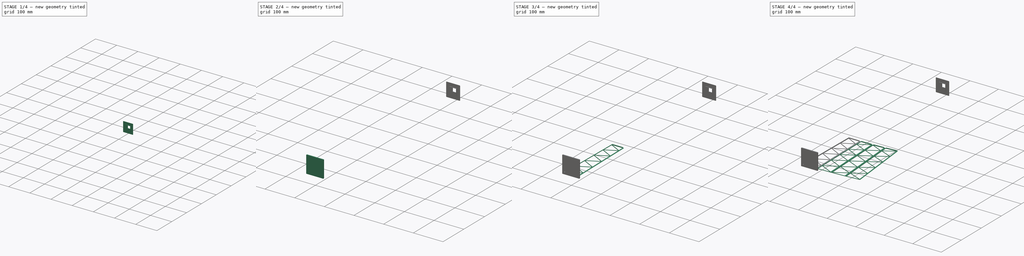
[diagram: build sequence overview — one tinted view per stage of 4, left to right]
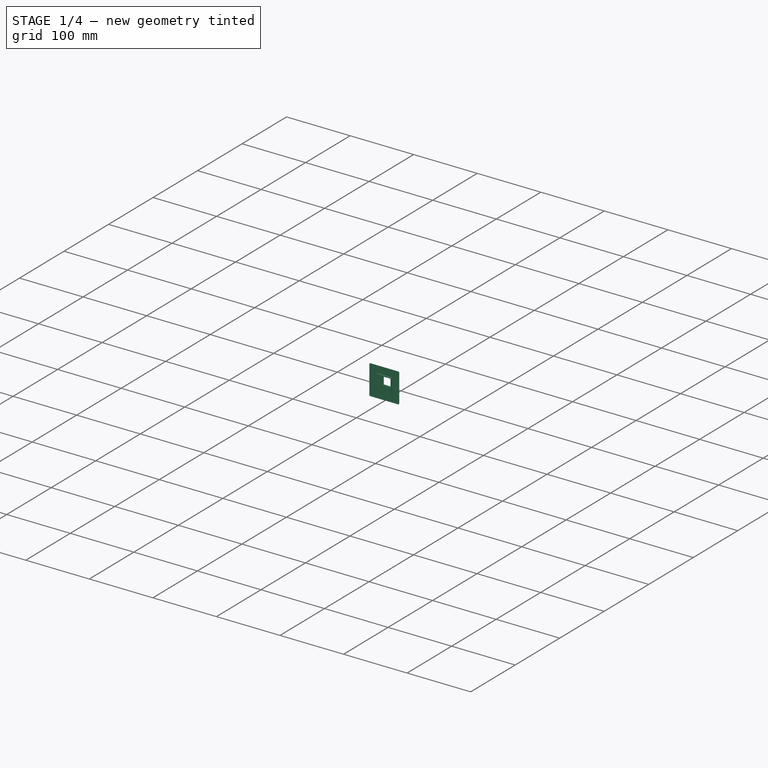
[diagram: stage 1 of 4 — iso view after this stage's code; geometry added in this stage tinted green]
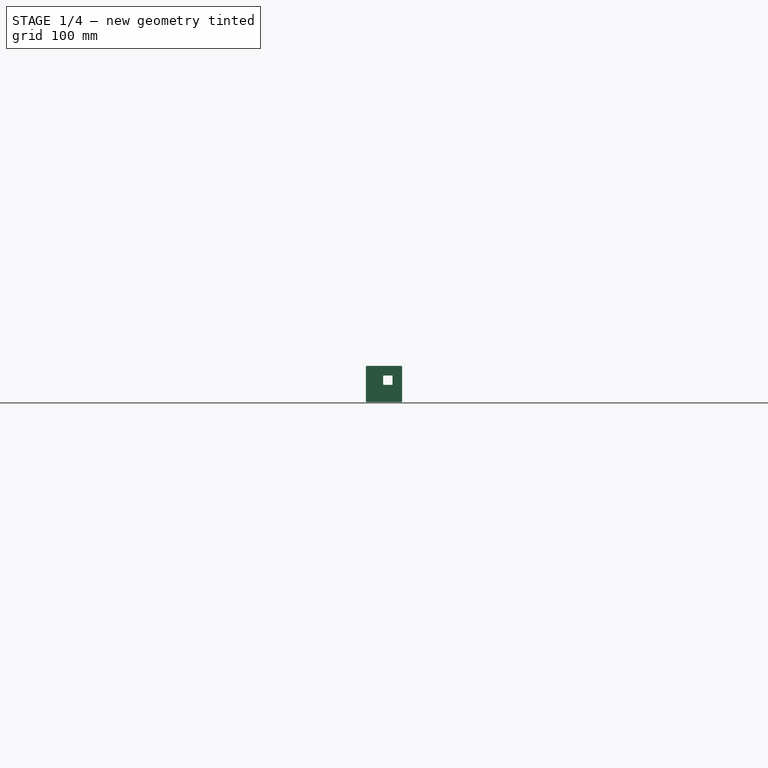
[diagram: stage 1 of 4 — front view after this stage's code; geometry added in this stage tinted green]
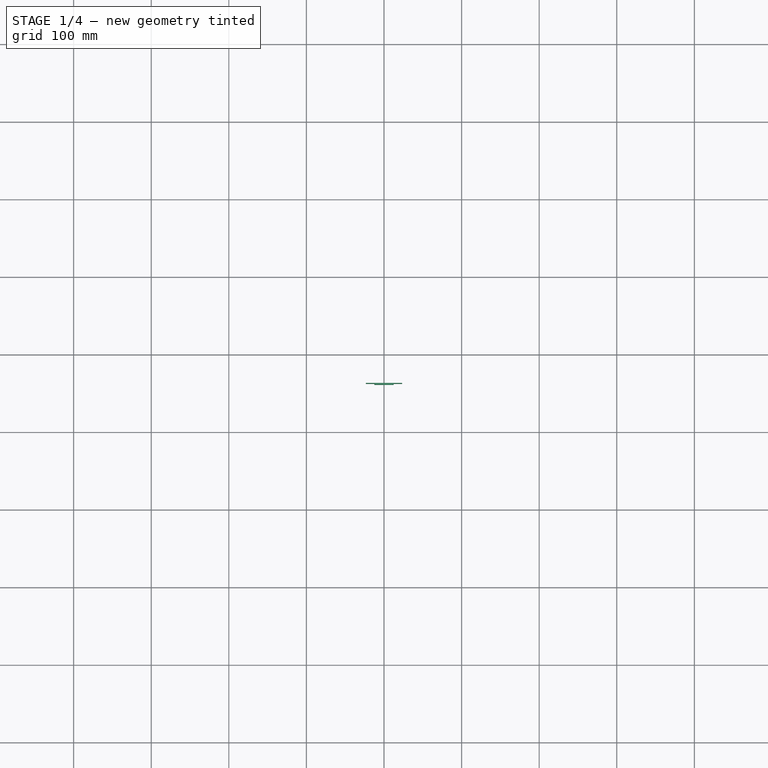
[diagram: stage 1 of 4 — top view after this stage's code; geometry added in this stage tinted green]
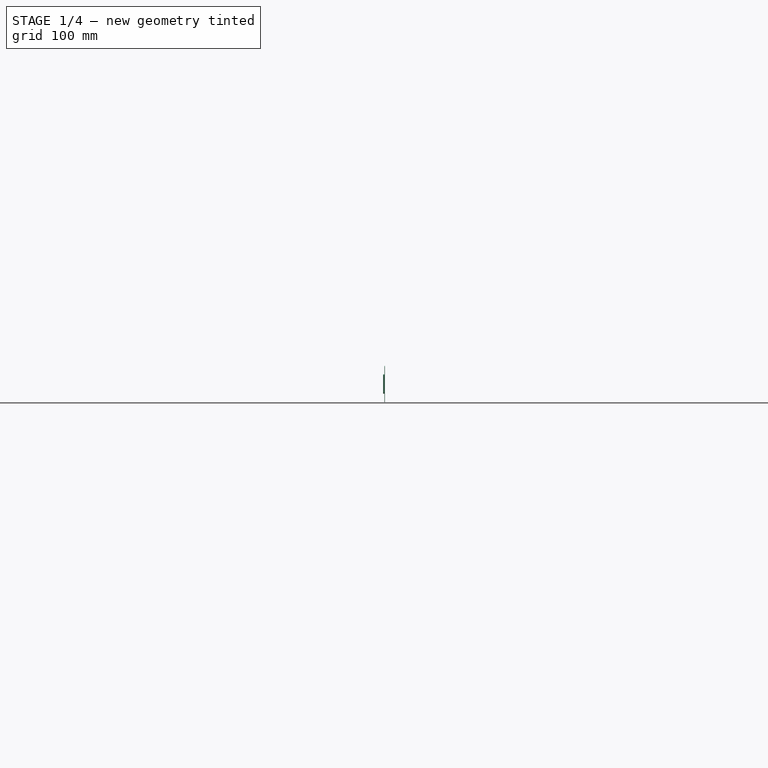
[diagram: stage 1 of 4 — right view after this stage's code; geometry added in this stage tinted green]
FCSTD DOCUMENT  (FreeCAD 1.0R39319 (Git))
Label: DSB_30m_lystaarn_4
License: All rights reserved
LicenseURL: http://en.wikipedia.org/wiki/All_rights_reserved
objects: Sketcher::SketchObject×10, PartDesign::Pad×6, PartDesign::Body×4, PartDesign::SubShapeBinder×3, PartDesign::Chamfer×2, PartDesign::Mirrored×2, Image::ImagePlane×1, App::VarSet×1, PartDesign::AdditivePipe×1, PartDesign::Fillet×1, PartDesign::Pocket×1
note: 64 computed .brp shape members not serialized (recipe doc carries the construction recipe); baked Part::Feature solids carry a one-line shape summary decoded from their .brp

FEATURE [PartDesign::Body] Body002
  AllowCompound = true
  Group = -> [Binder001,Sketch005,Pad002,Sketch006,Pad003,Fillet,Sketch007,Pocket]
  Origin = -> Origin002
  Tip = -> Pocket
FEATURE [PartDesign::SubShapeBinder] Binder002
  BindCopyOnChange = 0
  BindMode = 0
  ClaimChildren = false
  Context = -> Body003 [Binder002.]
  Fuse = false
  MakeFace = true
  OffsetFill = false
  OffsetIntersection = false
  OffsetJoinType = 0
  OffsetOpenResult = false
  PartialLoad = false
  Refine = true
  Relative = true
  Support = -> [Body[Sketch001.]]
  _Version = 2
FEATURE [Sketcher::SketchObject] Sketch008
  ArcFitTolerance = 1e-06
  AttachmentOffset = pos=(0,0,-662.6) rot=(0,0,1;0rad)
  AttachmentSupport = -> [XZ_Plane003]
  ExternalGeometry = -> [Binder002]
  FullyConstrained = false
  MakeInternals = false
  MapMode = 5
  Placement = pos=(0,662.6,-1.471e-13) rot=(1,0,0;1.5708rad)
  expr: .AttachmentOffset.Base.z = -VarSet.TowerHeight
  sketch-geometry (19):
    g0: LineSegment StartX=-12.385 StartY=-12.385 StartZ=0 EndX=12.385 EndY=-12.385 EndZ=0
    g1: LineSegment StartX=12.385 StartY=-12.385 StartZ=0 EndX=12.385 EndY=12.385 EndZ=0
    g2: LineSegment StartX=12.385 StartY=12.385 StartZ=0 EndX=-12.385 EndY=12.385 EndZ=0
    g3: LineSegment StartX=-12.385 StartY=12.385 StartZ=0 EndX=-12.385 EndY=-12.385 EndZ=0
    g4: GeomPoint [constr] X=0 Y=0 Z=0
    g5: LineSegment StartX=-0.115186 StartY=-1.115 StartZ=0 EndX=10.885 EndY=-1.115 EndZ=0
    g6: LineSegment StartX=10.885 StartY=-1.115 StartZ=0 EndX=10.885 EndY=10.885 EndZ=0
    g7: LineSegment StartX=10.885 StartY=10.885 StartZ=0 EndX=-0.115186 EndY=10.885 EndZ=0
    g8: LineSegment StartX=-1.115 StartY=9.88519 StartZ=0 EndX=-1.115 EndY=-0.115186 EndZ=0
    g9: GeomPoint [constr] X=4.885 Y=4.885 Z=0
    g10: LineSegment [constr] StartX=12.385 StartY=12.385 StartZ=0 EndX=0 EndY=0 EndZ=0
    g11: ArcOfCircle CenterX=-0.115186 CenterY=9.88519 CenterZ=0 NormalX=0 NormalY=0 NormalZ=1 AngleXU=0 Radius=0.999814 StartAngle=1.5708 EndAngle=3.14159
    g12: GeomPoint [constr] X=-1.115 Y=10.885 Z=0
    g13: ArcOfCircle CenterX=-0.115186 CenterY=-0.115186 CenterZ=0 NormalX=0 NormalY=0 NormalZ=1 AngleXU=0 Radius=0.999814 StartAngle=3.14159 EndAngle=4.71239
    g14: GeomPoint [constr] X=-1.115 Y=-1.115 Z=0
    g15: LineSegment [constr] StartX=12.385 StartY=12.385 StartZ=0 EndX=10.885 EndY=12.385 EndZ=0
    g16: LineSegment [constr] StartX=10.885 StartY=12.385 StartZ=0 EndX=10.885 EndY=10.885 EndZ=0
    g17: LineSegment [constr] StartX=10.885 StartY=10.885 StartZ=0 EndX=12.385 EndY=10.885 EndZ=0
    g18: LineSegment [constr] StartX=12.385 StartY=10.885 StartZ=0 EndX=12.385 EndY=12.385 EndZ=0
  constraints (44):
    c: Coincident(g0,g1)
    c: Coincident(g1,g2)
    c: Coincident(g2,g3)
    c: Coincident(g3,g0)
    c: Horizontal(g0)
    c: Horizontal(g2)
    c: Vertical(g1)
    c: Vertical(g3)
    c: Symmetric(g2,g0,g4)
    c: Coincident(g4,g-1)
    c: Equal(g2,g1)
    c: DistanceX(g1,g-3) = 0.6
    c: Coincident(g5,g6)
    c: Coincident(g6,g7)
    c: Horizontal(g5)
    c: Horizontal(g7)
    c: Vertical(g6)
    c: Vertical(g8)
    c: Symmetric(g7,g14,g9)
    c: Coincident(g10,g1)
    c: Coincident(g10,g4)
    c: PointOnObject(g9,g10)
    c: DistanceY(g6,g6) = 12
    c: PointOnObject(g12,g7)
    c: PointOnObject(g12,g8)
    c: Tangent(g7,g11) = -1.5708
    c: Tangent(g8,g11) = -1.5708
    c: PointOnObject(g14,g8)
    c: PointOnObject(g14,g5)
    c: Tangent(g8,g13) = -1.5708
    c: Tangent(g5,g13) = -1.5708
    c: Equal(g13,g11)
    c: PointOnObject(g6,g10)
    c: Coincident(g15,g16)
    c: Coincident(g16,g17)
    c: Coincident(g17,g18)
    c: Coincident(g18,g15)
    c: Horizontal(g15)
    c: Horizontal(g17)
    c: Vertical(g16)
    c: Vertical(g18)
    c: Coincident(g15,g1)
    c: Coincident(g16,g6)
    c: DistanceY(g16,g16) = 1.5
FEATURE [PartDesign::Pad] Pad004
  Direction = (0,-1,2e-16)
  Length = 1.5
  Length2 = 10
  Placement = pos=(0,0,0) rot=(1,0,0;1.5708rad)
  Profile = -> Sketch008
  ReferenceAxis = -> Sketch008 [N_Axis]
  Refine = true
  Suppressed = false
  Type = 0
FEATURE [Sketcher::SketchObject] Sketch009
  ArcFitTolerance = 1e-06
  AttachmentSupport = -> [Pad004]
  ExternalGeometry = -> [Binder002,Pad004]
  FullyConstrained = true
  MakeInternals = false
  MapMode = 5
  Placement = pos=(0,662.6,0) rot=(-1,0,0;1.5708rad)
  sketch-geometry (11):
    g0: LineSegment StartX=-23.3 StartY=-23.3 StartZ=0 EndX=23.3 EndY=-23.3 EndZ=0
    g1: LineSegment StartX=23.3 StartY=-23.3 StartZ=0 EndX=23.3 EndY=23.3 EndZ=0
    g2: LineSegment StartX=23.3 StartY=23.3 StartZ=0 EndX=-23.3 EndY=23.3 EndZ=0
    g3: LineSegment StartX=-23.3 StartY=23.3 StartZ=0 EndX=-23.3 EndY=-23.3 EndZ=0
    g4: GeomPoint [constr] X=0 Y=0 Z=0
    g5: ArcOfCircle CenterX=0 CenterY=0 CenterZ=0 NormalX=0 NormalY=0 NormalZ=1 AngleXU=0 Radius=1.12093 StartAngle=1.67374 EndAngle=3.03865
    g6: ArcOfCircle CenterX=0 CenterY=-9.77 CenterZ=0 NormalX=0 NormalY=0 NormalZ=1 AngleXU=0 Radius=1.12093 StartAngle=3.24453 EndAngle=4.60945
    g7: LineSegment StartX=-1.115 StartY=0.115186 StartZ=0 EndX=-1.115 EndY=-9.88519 EndZ=0
    g8: LineSegment StartX=-0.115186 StartY=1.115 StartZ=0 EndX=10.885 EndY=1.115 EndZ=0
    g9: LineSegment StartX=10.885 StartY=1.115 StartZ=0 EndX=10.885 EndY=-10.885 EndZ=0
    g10: LineSegment StartX=10.885 StartY=-10.885 StartZ=0 EndX=-0.115186 EndY=-10.885 EndZ=0
  constraints (26):
    c: Coincident(g0,g1)
    c: Coincident(g1,g2)
    c: Coincident(g2,g3)
    c: Coincident(g3,g0)
    c: Horizontal(g0)
    c: Horizontal(g2)
    c: Vertical(g1)
    c: Vertical(g3)
    c: Symmetric(g2,g0,g4)
    c: Coincident(g4,g-1)
    c: Equal(g1,g2)
    c: Coincident(g5,g4)
    c: Coincident(g5,g-7)
    c: PointOnObject(g6,g-2)
    c: Coincident(g7,g5)
    c: Coincident(g7,g6)
    c: Vertical(g7)
    c: Coincident(g6,g-6)
    c: Coincident(g6,g-5)
    c: Coincident(g8,g9)
    c: Coincident(g9,g-5)
    c: Coincident(g9,g10)
    c: Coincident(g10,g6)
    c: Coincident(g8,g5)
    c: Coincident(g8,g-7)
    c: DistanceX(g1,g-3) = 0.7
FEATURE [PartDesign::Pad] Pad005
  BaseFeature = -> Pad004
  Direction = (0,1,2e-16)
  Length = 0.6
  Length2 = 10
  Placement = pos=(0,0,0) rot=(1,0,0;1.5708rad)
  Profile = -> Sketch009
  ReferenceAxis = -> Sketch009 [N_Axis]
  Refine = true
  Suppressed = false
  Type = 0
FEATURE [PartDesign::Chamfer] Chamfer001
  Angle = 45
  Base = -> Pad005 [Edge8,Edge5,Edge1,Edge2,Edge24,Edge23,Edge28,Edge26]
  BaseFeature = -> Pad005
  ChamferType = 0
  FlipDirection = false
  Placement = pos=(0,0,0) rot=(1,0,0;1.5708rad)
  Refine = true
  Size = 1
  Size2 = 1
  SupportTransform = false
  Suppressed = false
  UseAllEdges = false
FEATURE [PartDesign::Body] Body003
  AllowCompound = true
  Group = -> [Binder002,Sketch008,Pad004,Sketch009,Pad005,Chamfer001]
  Origin = -> Origin003
  Tip = -> Chamfer001
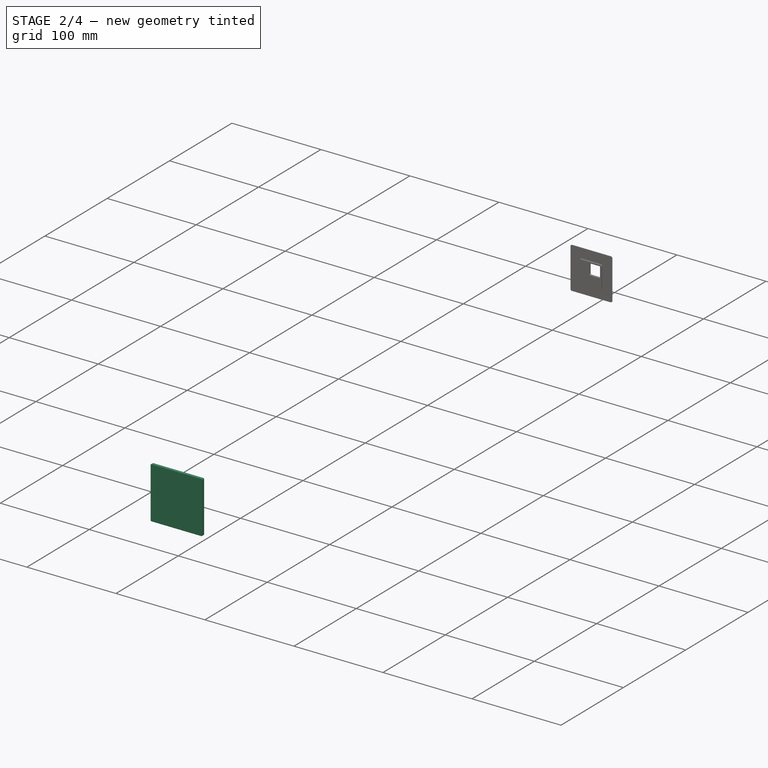
[diagram: stage 2 of 4 — iso view after this stage's code; geometry added in this stage tinted green]
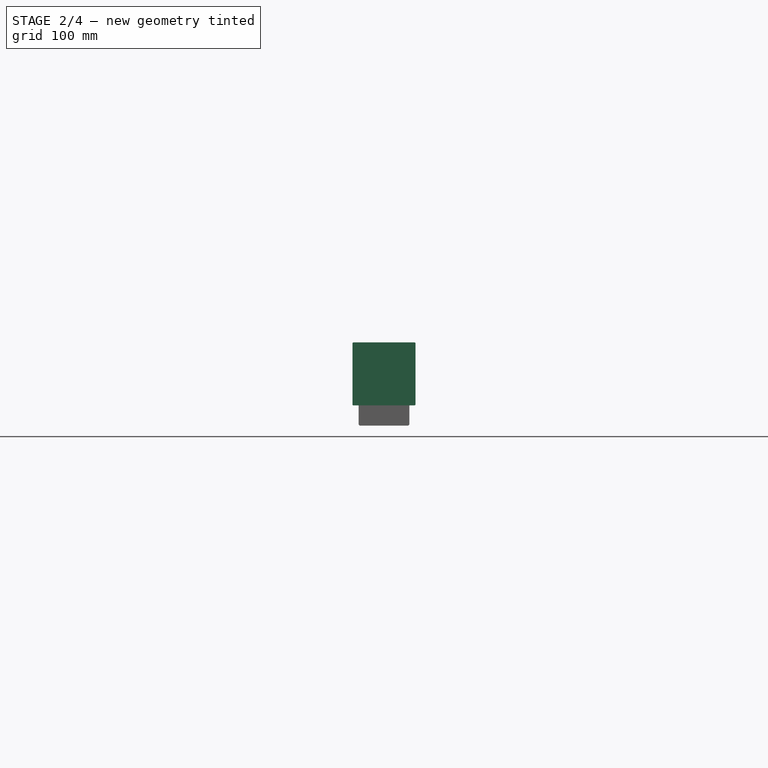
[diagram: stage 2 of 4 — front view after this stage's code; geometry added in this stage tinted green]
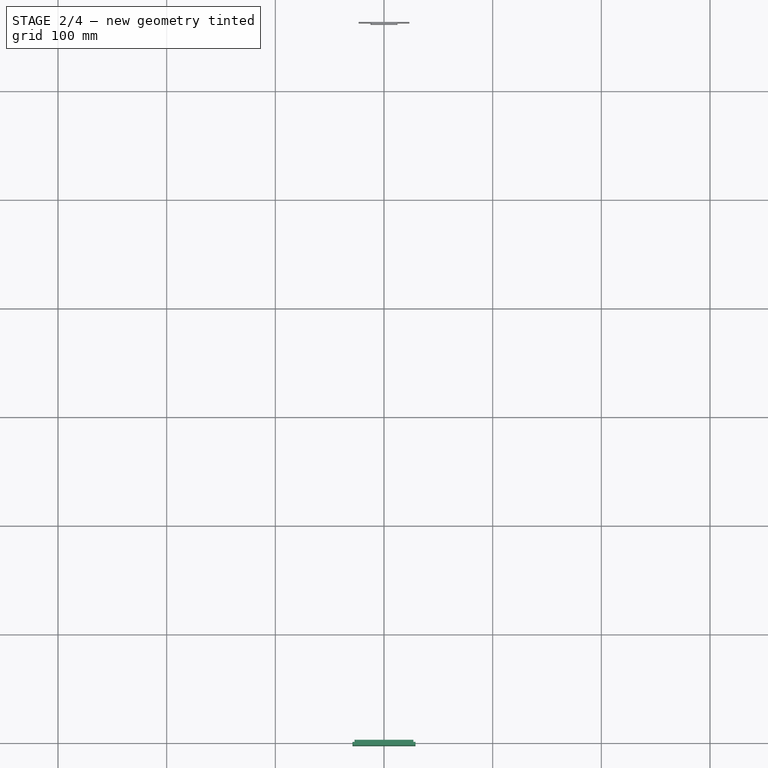
[diagram: stage 2 of 4 — top view after this stage's code; geometry added in this stage tinted green]
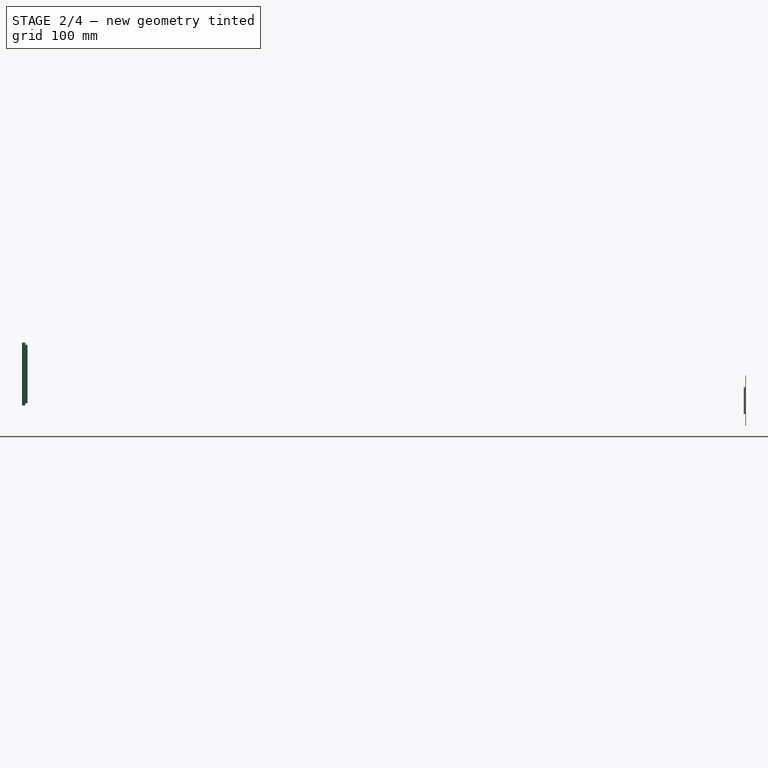
[diagram: stage 2 of 4 — right view after this stage's code; geometry added in this stage tinted green]
FEATURE [PartDesign::Body] Body001
  AllowCompound = true
  Group = -> [Binder,Sketch002,Pad,Chamfer,Sketch003,Pad001,Mirrored,Mirrored001,Sketch004,AdditivePipe]
  Origin = -> Origin001
  Tip = -> AdditivePipe
FEATURE [PartDesign::SubShapeBinder] Binder001
  BindCopyOnChange = 0
  BindMode = 0
  ClaimChildren = false
  Context = -> Body002 [Binder001.]
  Fuse = false
  MakeFace = true
  OffsetFill = false
  OffsetIntersection = false
  OffsetJoinType = 0
  OffsetOpenResult = false
  PartialLoad = false
  Refine = true
  Relative = true
  Support = -> [Body[Sketch001.]]
  _Version = 2
FEATURE [Sketcher::SketchObject] Sketch005
  ArcFitTolerance = 1e-06
  AttachmentSupport = -> [XZ_Plane002]
  ExternalGeometry = -> [Binder001]
  FullyConstrained = true
  MakeInternals = false
  MapMode = 5
  Placement = pos=(0,0,0) rot=(1,0,0;1.5708rad)
  expr: Constraints[55] = 1.5 + 0.5
  sketch-geometry (32):
    g0: LineSegment [constr] StartX=-24.25 StartY=48.5 StartZ=0 EndX=-24.25 EndY=0 EndZ=0
    g1: LineSegment [constr] StartX=-24.25 StartY=0 StartZ=0 EndX=24.25 EndY=0 EndZ=0
    g2: LineSegment [constr] StartX=24.25 StartY=0 StartZ=0 EndX=24.25 EndY=48.5 EndZ=0
    g3: LineSegment [constr] StartX=24.25 StartY=48.5 StartZ=0 EndX=-24.25 EndY=48.5 EndZ=0
    g4: GeomPoint [constr] X=-1.2e-15 Y=24.25 Z=0
    g5: LineSegment StartX=-25 StartY=-0.75 StartZ=0 EndX=25 EndY=-0.75 EndZ=0
    g6: LineSegment StartX=25 StartY=-0.75 StartZ=0 EndX=25 EndY=49.25 EndZ=0
    g7: LineSegment StartX=25 StartY=49.25 StartZ=0 EndX=-25 EndY=49.25 EndZ=0
    g8: LineSegment StartX=-25 StartY=49.25 StartZ=0 EndX=-25 EndY=-0.75 EndZ=0
    g9: GeomPoint [constr] X=-1.2e-15 Y=24.25 Z=0
    g10: LineSegment [constr] StartX=24.25 StartY=0 StartZ=0 EndX=24.25 EndY=-0.75 EndZ=0
    g11: LineSegment [constr] StartX=24.25 StartY=-0.75 StartZ=0 EndX=25 EndY=-0.75 EndZ=0
    g12: LineSegment [constr] StartX=25 StartY=-0.75 StartZ=0 EndX=25 EndY=0 EndZ=0
    g13: LineSegment [constr] StartX=25 StartY=0 StartZ=0 EndX=24.25 EndY=0 EndZ=0
    g14: LineSegment StartX=-22.25 StartY=2 StartZ=0 EndX=22.25 EndY=2 EndZ=0
    g15: LineSegment StartX=22.25 StartY=2 StartZ=0 EndX=22.25 EndY=46.5 EndZ=0
    g16: LineSegment StartX=22.25 StartY=46.5 StartZ=0 EndX=-22.25 EndY=46.5 EndZ=0
    g17: LineSegment StartX=-22.25 StartY=46.5 StartZ=0 EndX=-22.25 EndY=2 EndZ=0
    g18: GeomPoint [constr] X=-1.2e-15 Y=24.25 Z=0
    g19: LineSegment [constr] StartX=22.25 StartY=2 StartZ=0 EndX=22.25 EndY=0 EndZ=0
    g20: LineSegment [constr] StartX=22.25 StartY=0 StartZ=0 EndX=24.25 EndY=0 EndZ=0
    g21: LineSegment [constr] StartX=24.25 StartY=0 StartZ=0 EndX=24.25 EndY=2 EndZ=0
    g22: LineSegment [constr] StartX=24.25 StartY=2 StartZ=0 EndX=22.25 EndY=2 EndZ=0
    g23: LineSegment StartX=-27 StartY=-2.75 StartZ=0 EndX=27 EndY=-2.75 EndZ=0
    g24: LineSegment StartX=27 StartY=-2.75 StartZ=0 EndX=27 EndY=51.25 EndZ=0
    g25: LineSegment StartX=27 StartY=51.25 StartZ=0 EndX=-27 EndY=51.25 EndZ=0
    g26: LineSegment StartX=-27 StartY=51.25 StartZ=0 EndX=-27 EndY=-2.75 EndZ=0
    g27: GeomPoint [constr] X=-1.2e-15 Y=24.25 Z=0
    g28: LineSegment [constr] StartX=25 StartY=49.25 StartZ=0 EndX=27 EndY=49.25 EndZ=0
    g29: LineSegment [constr] StartX=27 StartY=49.25 StartZ=0 EndX=27 EndY=51.25 EndZ=0
    g30: LineSegment [constr] StartX=27 StartY=51.25 StartZ=0 EndX=25 EndY=51.25 EndZ=0
    g31: LineSegment [constr] StartX=25 StartY=51.25 StartZ=0 EndX=25 EndY=49.25 EndZ=0
  constraints (78):
    c: Coincident(g0,g1)
    c: Coincident(g1,g2)
    c: Coincident(g2,g3)
    c: Coincident(g3,g0)
    c: Vertical(g0)
    c: Vertical(g2)
    c: Horizontal(g1)
    c: Horizontal(g3)
    c: Symmetric(g2,g0,g4)
    c: Equal(g1,g0)
    c: Symmetric(g1,g0,g-1)
    c: Distance(g1,g-3) = 1.5
    c: Coincident(g5,g6)
    c: Coincident(g6,g7)
    c: Coincident(g7,g8)
    c: Coincident(g8,g5)
    c: Horizontal(g5)
    c: Horizontal(g7)
    c: Vertical(g6)
    c: Vertical(g8)
    c: Symmetric(g7,g5,g9)
    c: Coincident(g9,g4)
    c: Equal(g6,g5)
    c: Coincident(g10,g11)
    c: Coincident(g11,g12)
    c: Coincident(g12,g13)
    c: Coincident(g13,g10)
    c: Vertical(g10)
    c: Vertical(g12)
    c: Horizontal(g11)
    c: Horizontal(g13)
    c: Coincident(g10,g1)
    c: Coincident(g5,g11)
    c: DistanceY(g10,g10) = 0.75
    c: Coincident(g14,g15)
    c: Coincident(g15,g16)
    c: Coincident(g16,g17)
    c: Coincident(g17,g14)
    c: Horizontal(g14)
    c: Horizontal(g16)
    c: Vertical(g15)
    c: Vertical(g17)
    c: Symmetric(g16,g14,g18)
    c: Coincident(g18,g4)
    c: Coincident(g19,g20)
    c: Coincident(g20,g21)
    c: Coincident(g21,g22)
    c: Coincident(g22,g19)
    c: Vertical(g19)
    c: Vertical(g21)
    c: Horizontal(g20)
    c: Horizontal(g22)
    c: Equal(g19,g20)
    c: Coincident(g20,g1)
    c: Coincident(g19,g14)
    c: Distance(g22,g22) = 2
    c: Coincident(g23,g24)
    c: Coincident(g24,g25)
    c: Coincident(g25,g26)
    c: Coincident(g26,g23)
    c: Horizontal(g23)
    c: Horizontal(g25)
    c: Vertical(g24)
    c: Vertical(g26)
    c: Symmetric(g25,g23,g27)
    c: Coincident(g27,g4)
    c: Coincident(g28,g29)
    c: Coincident(g29,g30)
    c: Coincident(g30,g31)
    c: Coincident(g31,g28)
    c: Horizontal(g28)
    c: Horizontal(g30)
    c: Vertical(g29)
    c: Vertical(g31)
    c: Coincident(g28,g6)
    c: Coincident(g29,g24)
    c: Equal(g28,g31)
    c: DistanceX(g28,g28) = 2
FEATURE [PartDesign::Pad] Pad002
  Direction = (0,-1,2e-16)
  Length = 2
  Length2 = 10
  Placement = pos=(0,0,0) rot=(1,0,0;1.5708rad)
  Profile = -> Sketch005
  ReferenceAxis = -> Sketch005 [N_Axis]
  Refine = true
  Reversed = true
  Suppressed = false
  Type = 0
FEATURE [Sketcher::SketchObject] Sketch006
  ArcFitTolerance = 1e-06
  AttachmentSupport = -> [Pad002]
  ExternalGeometry = -> [Pad002]
  FullyConstrained = true
  MakeInternals = false
  MapMode = 5
  Placement = pos=(0,5.4e-15,0) rot=(1,0,0;1.5708rad)
  sketch-geometry (10):
    g0: GeomPoint [constr] X=-3.8e-15 Y=24.25 Z=0
    g1: LineSegment StartX=-29 StartY=-4.75 StartZ=0 EndX=29 EndY=-4.75 EndZ=0
    g2: LineSegment StartX=29 StartY=-4.75 StartZ=0 EndX=29 EndY=53.25 EndZ=0
    g3: LineSegment StartX=29 StartY=53.25 StartZ=0 EndX=-29 EndY=53.25 EndZ=0
    g4: LineSegment StartX=-29 StartY=53.25 StartZ=0 EndX=-29 EndY=-4.75 EndZ=0
    g5: GeomPoint [constr] X=-3.8e-15 Y=24.25 Z=0
    g6: LineSegment [constr] StartX=27 StartY=51.25 StartZ=0 EndX=29 EndY=51.25 EndZ=0
    g7: LineSegment [constr] StartX=29 StartY=51.25 StartZ=0 EndX=29 EndY=53.25 EndZ=0
    g8: LineSegment [constr] StartX=29 StartY=53.25 StartZ=0 EndX=27 EndY=53.25 EndZ=0
    g9: LineSegment [constr] StartX=27 StartY=53.25 StartZ=0 EndX=27 EndY=51.25 EndZ=0
  constraints (23):
    c: Symmetric(g-3,g-4,g0)
    c: Coincident(g1,g2)
    c: Coincident(g2,g3)
    c: Coincident(g3,g4)
    c: Coincident(g4,g1)
    c: Horizontal(g1)
    c: Horizontal(g3)
    c: Vertical(g2)
    c: Vertical(g4)
    c: Symmetric(g3,g1,g5)
    c: Coincident(g5,g0)
    c: Coincident(g6,g7)
    c: Coincident(g7,g8)
    c: Coincident(g8,g9)
    c: Coincident(g9,g6)
    c: Horizontal(g6)
    c: Horizontal(g8)
    c: Vertical(g7)
    c: Vertical(g9)
    c: Coincident(g6,g-3)
    c: Coincident(g7,g2)
    c: Equal(g6,g9)
    c: Distance(g6,g6) = 2
FEATURE [PartDesign::Pad] Pad003
  BaseFeature = -> Pad002
  Direction = (0,-1,2e-16)
  Length = 3
  Length2 = 10
  Placement = pos=(0,0,0) rot=(1,0,0;1.5708rad)
  Profile = -> Sketch006
  ReferenceAxis = -> Sketch006 [N_Axis]
  Refine = true
  Suppressed = false
  Type = 0
FEATURE [PartDesign::Fillet] Fillet
  Base = -> Pad003 [Edge24,Edge5,Edge41,Edge44,Edge8,Edge26,Edge22,Edge2,Edge46,Edge21,Edge1,Edge42]
  BaseFeature = -> Pad003
  Placement = pos=(0,0,0) rot=(1,0,0;1.5708rad)
  Radius = 1
  Refine = true
  SupportTransform = false
  Suppressed = false
  UseAllEdges = false
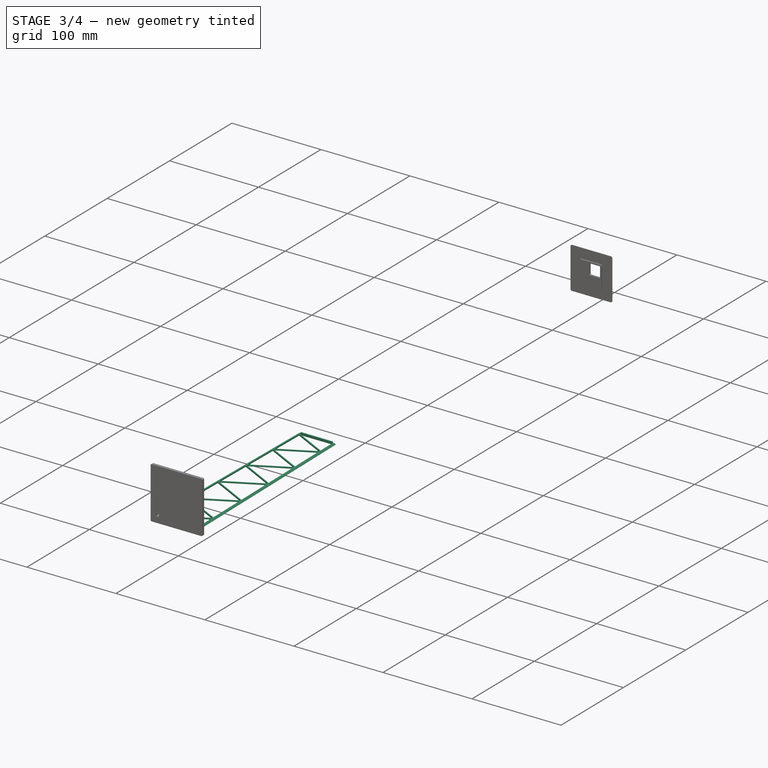
[diagram: stage 3 of 4 — iso view after this stage's code; geometry added in this stage tinted green]
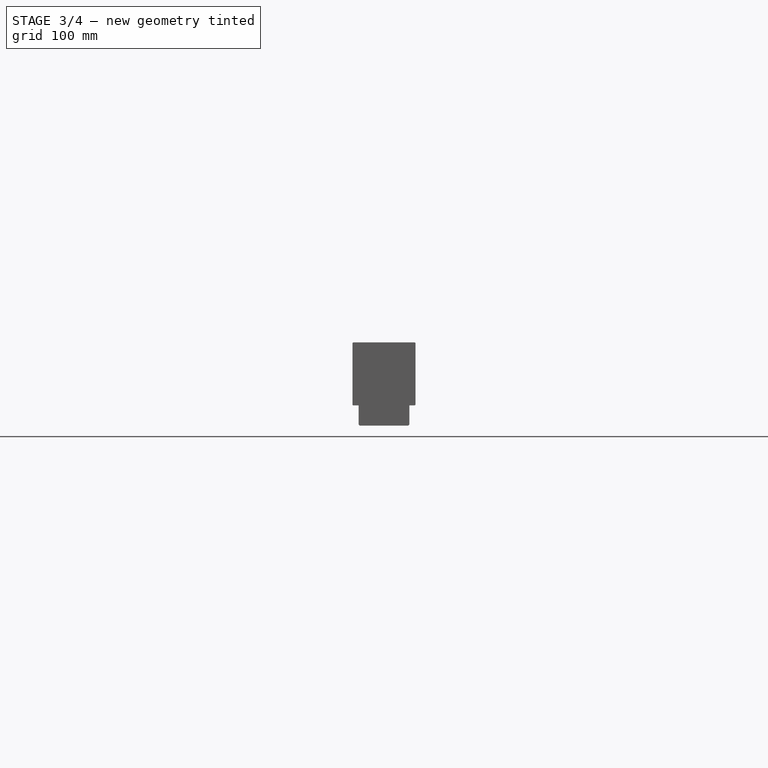
[diagram: stage 3 of 4 — front view after this stage's code; geometry added in this stage tinted green]
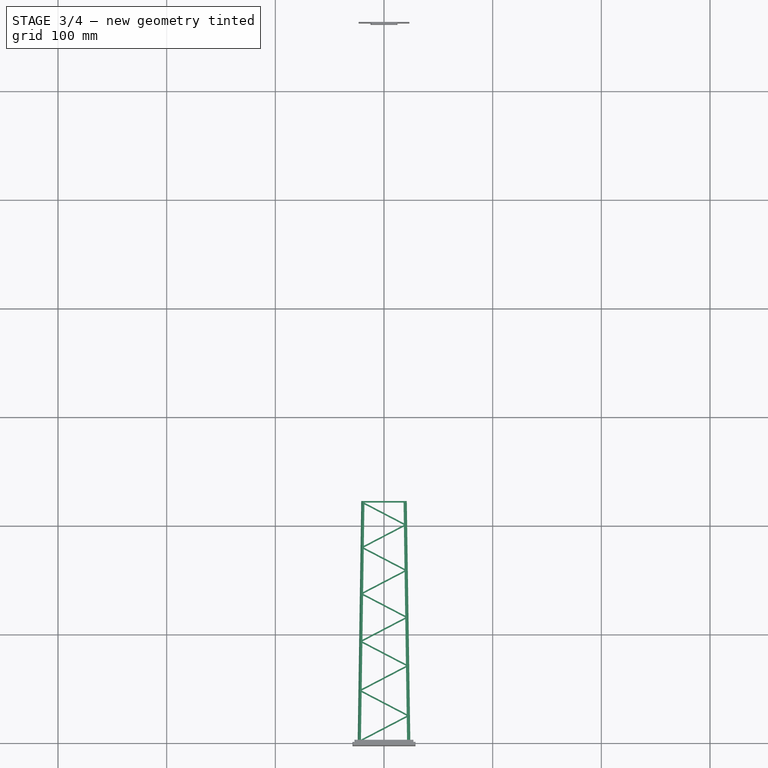
[diagram: stage 3 of 4 — top view after this stage's code; geometry added in this stage tinted green]
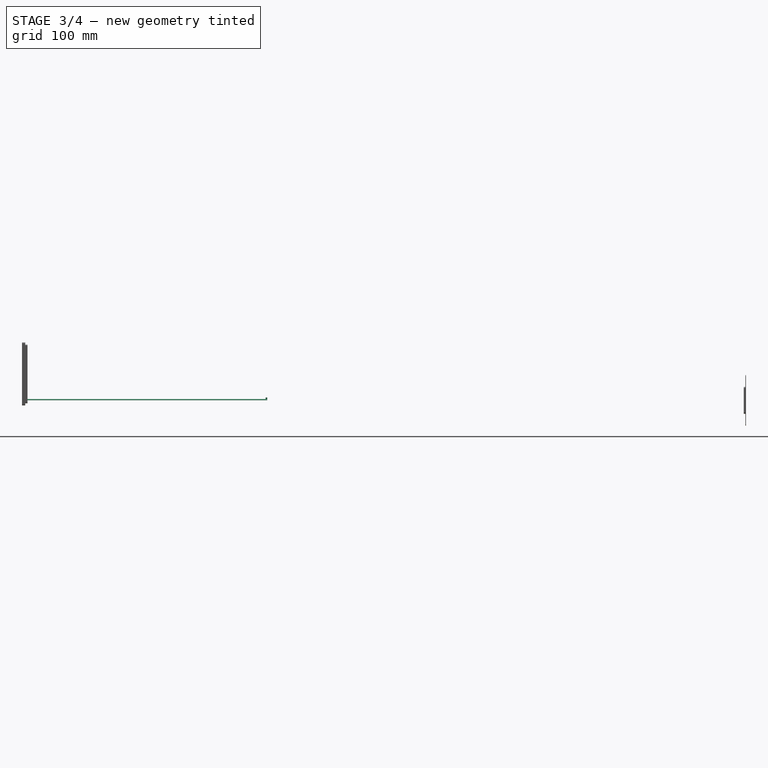
[diagram: stage 3 of 4 — right view after this stage's code; geometry added in this stage tinted green]
FEATURE [Image::ImagePlane] Taarn
  Placement = pos=(-63.4214,156.887,0) rot=(0,0,1;0.012217rad)
  XSize = 407.33
  YSize = 576.174
FEATURE [App::VarSet] VarSet
  IronLegWidth = 3
  IronSupportWidth = 1.5
  TowerBottomWidth = 45.5
  TowerHeight = 662.6
  TowerTopWidth = 25.97
  expr: TowerHeight = 353.87 + 308.73
FEATURE [Sketcher::SketchObject] Sketch  label="Basic Measurements"
  ArcFitTolerance = 1e-06
  AttachmentSupport = -> [XY_Plane]
  FullyConstrained = false
  MakeInternals = false
  MapMode = 5
  sketch-geometry (6):
    g0: LineSegment StartX=-22.75 StartY=0 StartZ=0 EndX=22.75 EndY=0 EndZ=0
    g1: LineSegment StartX=0 StartY=0 StartZ=0 EndX=0 EndY=353.87 EndZ=0
    g2: LineSegment StartX=-157.614 StartY=302.942 StartZ=0 EndX=-131.644 EndY=302.942 EndZ=0
    g3: LineSegment StartX=-144.629 StartY=302.942 StartZ=0 EndX=-143.643 EndY=-5.78841 EndZ=0
    g4: LineSegment StartX=-96.211 StartY=303.16 StartZ=0 EndX=-48.4821 EndY=303.16 EndZ=0
    g5: LineSegment StartX=-48.4821 StartY=327.388 StartZ=0 EndX=-48.4821 EndY=303.16 EndZ=0
  constraints (14):
    c: PointOnObject(g0,g-1)
    c: Coincident(g1,g-1)
    c: Vertical(g1)
    c: Symmetric(g0,g0,g1)
    c: DistanceX(g0,g0) = 45.5
    c: Horizontal(g2)
    c: DistanceX(g2,g2) = 25.97
    c: Symmetric(g2,g2,g3)
    c: DistanceY(g3,g3) = 308.73
    c: DistanceY(g1,g1) = 353.87
    c: Horizontal(g4)
    c: DistanceX(g4,g4) = 47.7289
    c: Coincident(g5,g4)
    c: DistanceY(g5,g5) = 24.2284
FEATURE [Sketcher::SketchObject] Sketch001  label="Basic Lattice Mast"
  ArcFitTolerance = 1e-06
  AttachmentSupport = -> [XY_Plane]
  FullyConstrained = true
  MakeInternals = false
  MapMode = 5
  expr: Constraints[128] = VarSet.IronSupportWidth
  expr: Constraints[56] = VarSet.IronSupportWidth * 2
  expr: Constraints[7] = VarSet.TowerTopWidth
  expr: Constraints[8] = VarSet.TowerBottomWidth
  expr: Constraints[91] = VarSet.IronSupportWidth * 2
  expr: Constraints[9] = VarSet.TowerHeight
  sketch-geometry (50):
    g0: LineSegment StartX=-22.75 StartY=0 StartZ=0 EndX=-12.985 EndY=662.6 EndZ=0
    g1: LineSegment StartX=-12.985 StartY=662.6 StartZ=0 EndX=12.985 EndY=662.6 EndZ=0
    g2: LineSegment StartX=12.985 StartY=662.6 StartZ=0 EndX=22.75 EndY=0 EndZ=0
    g3: LineSegment StartX=22.75 StartY=0 StartZ=0 EndX=-22.75 EndY=0 EndZ=0
    g4: LineSegment StartX=-22.7279 StartY=1.5 StartZ=0 EndX=22.3814 EndY=25.0125 EndZ=0
    g5: LineSegment StartX=22.3814 StartY=25.0125 StartZ=0 EndX=-22.0402 EndY=48.1665 EndZ=0
    g6: LineSegment StartX=-22.0402 StartY=48.1665 StartZ=0 EndX=21.7041 EndY=70.9675 EndZ=0
    g7: LineSegment StartX=21.7041 StartY=70.9675 StartZ=0 EndX=-21.3732 EndY=93.4209 EndZ=0
    g8: LineSegment [constr] StartX=22.3814 StartY=25.0125 StartZ=0 EndX=-22.3814 EndY=25.0125 EndZ=0
    g9: ArcOfCircle [constr] CenterX=22.3814 CenterY=25.0125 CenterZ=0 NormalX=0 NormalY=0 NormalZ=1 AngleXU=0 Radius=30 StartAngle=2.6611 EndAngle=3.62208
    g10: LineSegment [constr] StartX=-4.22167 StartY=38.8789 StartZ=0 EndX=-4.22167 EndY=11.1461 EndZ=0
    g11: LineSegment StartX=-21.3732 StartY=93.4209 StartZ=0 EndX=21.0474 EndY=115.532 EndZ=0
    g12: LineSegment StartX=21.0474 StartY=115.532 StartZ=0 EndX=-20.7265 EndY=137.306 EndZ=0
    g13: LineSegment StartX=-20.7265 StartY=137.306 StartZ=0 EndX=20.4105 EndY=158.748 EndZ=0
    g14: LineSegment StartX=20.4105 StartY=158.748 StartZ=0 EndX=-20.0993 EndY=179.863 EndZ=0
    g15: LineSegment StartX=-20.0993 StartY=179.863 StartZ=0 EndX=19.7929 EndY=200.656 EndZ=0
    g16: LineSegment StartX=19.7929 StartY=200.656 StartZ=0 EndX=-19.4911 EndY=221.132 EndZ=0
    g17: LineSegment StartX=-19.4469 StartY=224.132 StartZ=0 EndX=19.1504 EndY=244.25 EndZ=0
    g18: LineSegment StartX=19.1504 StartY=244.25 StartZ=0 EndX=-18.8584 EndY=264.062 EndZ=0
    g19: LineSegment StartX=-18.8584 StartY=264.062 StartZ=0 EndX=18.5709 EndY=283.571 EndZ=0
    g20: LineSegment StartX=18.5709 StartY=283.571 StartZ=0 EndX=-18.2878 EndY=302.783 EndZ=0
    g21: LineSegment StartX=-18.2878 StartY=302.783 StartZ=0 EndX=18.0089 EndY=321.702 EndZ=0
    g22: LineSegment StartX=18.0089 StartY=321.702 StartZ=0 EndX=-17.7344 EndY=340.333 EndZ=0
    g23: LineSegment StartX=-17.7344 StartY=340.333 StartZ=0 EndX=17.464 EndY=358.68 EndZ=0
    g24: LineSegment StartX=17.464 StartY=358.68 StartZ=0 EndX=-17.1977 EndY=376.747 EndZ=0
    g25: LineSegment StartX=-17.1977 StartY=376.747 StartZ=0 EndX=16.9355 EndY=394.538 EndZ=0
    g26: LineSegment StartX=16.9355 StartY=394.538 StartZ=0 EndX=-16.6773 EndY=412.058 EndZ=0
    g27: LineSegment StartX=-16.6773 StartY=412.058 StartZ=0 EndX=16.4231 EndY=429.311 EndZ=0
    g28: LineSegment StartX=16.4231 StartY=429.311 StartZ=0 EndX=-16.1727 EndY=446.301 EndZ=0
    g29: LineSegment StartX=-16.1285 StartY=449.301 StartZ=0 EndX=15.8826 EndY=465.987 EndZ=0
    g30: LineSegment StartX=15.8826 StartY=465.987 StartZ=0 EndX=-15.6404 EndY=482.417 EndZ=0
    g31: LineSegment StartX=-15.6404 StartY=482.417 StartZ=0 EndX=15.402 EndY=498.598 EndZ=0
    g32: LineSegment StartX=15.402 StartY=498.598 StartZ=0 EndX=-15.1671 EndY=514.531 EndZ=0
    g33: LineSegment StartX=-15.1671 StartY=514.531 StartZ=0 EndX=14.9359 EndY=530.222 EndZ=0
    g34: LineSegment StartX=14.9359 StartY=530.222 StartZ=0 EndX=-14.7082 EndY=545.674 EndZ=0
    g35: LineSegment StartX=-14.7082 StartY=545.674 StartZ=0 EndX=14.4839 EndY=560.89 EndZ=0
    g36: LineSegment StartX=14.4839 StartY=560.89 StartZ=0 EndX=-14.2631 EndY=575.874 EndZ=0
    g37: LineSegment StartX=-14.2631 StartY=575.874 StartZ=0 EndX=14.0457 EndY=590.629 EndZ=0
    g38: LineSegment StartX=14.0457 StartY=590.629 StartZ=0 EndX=-13.8315 EndY=605.16 EndZ=0
    g39: LineSegment StartX=-13.8315 StartY=605.16 StartZ=0 EndX=13.6206 EndY=619.469 EndZ=0
    g40: LineSegment StartX=13.6206 StartY=619.469 StartZ=0 EndX=-13.413 EndY=633.56 EndZ=0
    g41: LineSegment StartX=-13.413 StartY=633.56 StartZ=0 EndX=13.2085 EndY=647.436 EndZ=0
    g42: LineSegment StartX=13.2085 StartY=647.436 StartZ=0 EndX=-13.0071 EndY=661.1 EndZ=0
    g43: LineSegment StartX=-16.1506 StartY=447.801 StartZ=0 EndX=16.1506 EndY=447.801 EndZ=0
    g44: LineSegment StartX=-19.469 StartY=222.632 StartZ=0 EndX=19.469 EndY=222.632 EndZ=0
    g45: LineSegment StartX=-24 StartY=688.1 StartZ=0 EndX=-24 EndY=664.1 EndZ=0
    g46: LineSegment StartX=-24 StartY=664.1 StartZ=0 EndX=24 EndY=664.1 EndZ=0
    g47: LineSegment StartX=24 StartY=664.1 StartZ=0 EndX=24 EndY=688.1 EndZ=0
    g48: LineSegment StartX=24 StartY=688.1 StartZ=0 EndX=-24 EndY=688.1 EndZ=0
    g49: LineSegment StartX=-24 StartY=676.1 StartZ=0 EndX=24 EndY=676.1 EndZ=0
  constraints (149):
    c: Coincident(g0,g1)
    c: Coincident(g1,g2)
    c: Coincident(g2,g3)
    c: Coincident(g3,g0)
    c: Horizontal(g3)
    c: Symmetric(g0,g2,g-1)
    c: Symmetric(g1,g0,g-2)
    c: DistanceX(g1,g1) = 25.97
    c: DistanceX(g3,g3) = 45.5
    c: DistanceY(g-1,g1) = 662.6
    c: Coincident(g4,g5)
    c: Coincident(g5,g6)
    c: Coincident(g6,g7)
    c: Coincident(g8,g4)
    c: PointOnObject(g8,g0)
    c: Horizontal(g8)
    c: Coincident(g9,g4)
    c: PointOnObject(g9,g5)
    c: PointOnObject(g9,g4)
    c: Coincident(g10,g9)
    c: Coincident(g10,g9)
    c: Vertical(g10)
    c: Parallel(g4,g6)
    c: Parallel(g7,g5)
    c: PointOnObject(g7,g0)
    c: PointOnObject(g5,g0)
    c: PointOnObject(g4,g0)
    c: PointOnObject(g6,g2)
    c: PointOnObject(g4,g2) = 1.5
    c: DistanceY(g0,g4) = 1.5
    c: Coincident(g11,g12)
    c: Coincident(g12,g13)
    c: Coincident(g13,g14)
    c: Parallel(g6,g11)
    c: Parallel(g11,g13)
    c: Parallel(g14,g12)
    c: Parallel(g12,g7)
    c: Coincident(g11,g7)
    c: PointOnObject(g12,g0)
    c: PointOnObject(g14,g0)
    c: PointOnObject(g13,g2)
    c: PointOnObject(g11,g2)
    c: Coincident(g14,g15)
    c: Coincident(g15,g16)
    c: Parallel(g14,g16)
    c: Parallel(g15,g13)
    c: PointOnObject(g16,g0)
    c: PointOnObject(g15,g2)
    c: Coincident(g17,g18)
    c: Coincident(g18,g19)
    c: Coincident(g19,g20)
    c: Parallel(g20,g18)
    c: Parallel(g18,g16)
    c: Parallel(g15,g17)
    c: Parallel(g17,g19)
    c: PointOnObject(g17,g0)
    c: DistanceY(g16,g17) = 3
    c: PointOnObject(g18,g0)
    c: PointOnObject(g17,g2)
    c: PointOnObject(g19,g2)
    c: PointOnObject(g20,g0)
    c: Coincident(g21,g22)
    c: Coincident(g22,g23)
    c: Parallel(g19,g21)
    c: Parallel(g21,g23)
    c: Parallel(g20,g22)
    c: Coincident(g21,g20)
    c: PointOnObject(g22,g0)
    c: PointOnObject(g21,g2)
    c: PointOnObject(g23,g2)
    c: Coincident(g24,g25)
    c: Coincident(g25,g26)
    c: Coincident(g26,g27)
    c: Coincident(g27,g28)
    c: Parallel(g27,g25)
    c: Parallel(g25,g23)
    c: Parallel(g28,g26)
    c: Parallel(g26,g22)
    c: Coincident(g24,g23)
    c: PointOnObject(g24,g0)
    c: PointOnObject(g25,g2)
    c: Parallel(g24,g22)
    c: PointOnObject(g26,g0)
    c: PointOnObject(g27,g2)
    c: PointOnObject(g28,g0)
    c: Coincident(g29,g30)
    c: Parallel(g27,g29)
    c: Parallel(g30,g28)
    c: PointOnObject(g29,g0)
    c: PointOnObject(g30,g0)
    c: PointOnObject(g29,g2)
    c: DistanceY(g28,g29) = 3
    c: Coincident(g31,g32)
    c: Coincident(g33,g34)
    c: Coincident(g35,g36)
    c: Parallel(g32,g34)
    c: Parallel(g34,g36)
    c: Parallel(g36,g30)
    c: Parallel(g29,g31)
    c: Parallel(g31,g33)
    c: Parallel(g33,g35)
    c: Coincident(g32,g33)
    c: Coincident(g31,g30)
    c: PointOnObject(g31,g2)
    c: PointOnObject(g32,g0)
    c: PointOnObject(g33,g2)
    c: PointOnObject(g34,g0)
    c: Coincident(g35,g34)
    c: PointOnObject(g35,g2)
    c: PointOnObject(g36,g0)
    c: Coincident(g37,g38)
    c: Coincident(g39,g40)
    c: Parallel(g35,g37)
    c: Parallel(g37,g39)
    c: Parallel(g40,g38)
    c: Parallel(g38,g36)
    c: Coincident(g37,g36)
    c: PointOnObject(g37,g2)
    c: PointOnObject(g38,g0)
    c: Coincident(g39,g38)
    c: PointOnObject(g40,g0)
    c: PointOnObject(g39,g2)
    c: Coincident(g40,g41)
    c: Coincident(g41,g42)
    c: Parallel(g40,g42)
    c: Parallel(g41,g39)
    c: PointOnObject(g41,g2)
    c: PointOnObject(g42,g0)
    c: DistanceY(g42,g0) = 1.5
    c: Radius(g9) = 30
    c: Horizontal(g43)
    c: PointOnObject(g43,g2)
    c: Symmetric(g28,g29,g43)
    c: Horizontal(g44)
    c: PointOnObject(g44,g2)
    c: Symmetric(g16,g17,g44)
    c: Coincident(g45,g46)
    c: Coincident(g46,g47)
    c: Coincident(g47,g48)
    c: Coincident(g48,g45)
    c: Vertical(g45)
    c: Vertical(g47)
    c: Horizontal(g48)
    c: Symmetric(g46,g45,g-2)
    c: DistanceX(g48,g48) = 48
    c: DistanceY(g45,g45) = 24
    c: Symmetric(g45,g45,g49)
    c: Symmetric(g49,g49,g-2)
    c: DistanceY(g0,g45) = 1.5
FEATURE [PartDesign::Body] Body
  AllowCompound = true
  Group = -> [Sketch,Sketch001]
  Origin = -> Origin
FEATURE [PartDesign::SubShapeBinder] Binder
  BindCopyOnChange = 0
  BindMode = 0
  ClaimChildren = false
  Context = -> Body001 [Binder.]
  Fuse = false
  MakeFace = true
  OffsetFill = false
  OffsetIntersection = false
  OffsetJoinType = 0
  OffsetOpenResult = false
  PartialLoad = false
  Refine = true
  Relative = true
  Support = -> [Body[Sketch001.]]
  _Version = 2
FEATURE [Sketcher::SketchObject] Sketch002
  ArcFitTolerance = 1e-06
  AttachmentSupport = -> [XY_Plane001]
  ExternalGeometry = -> [Binder]
  FullyConstrained = true
  MakeInternals = false
  MapMode = 5
  expr: Constraints[12] = VarSet.IronLegWidth
  sketch-geometry (39):
    g0: LineSegment StartX=-24.2503 StartY=0 StartZ=0 EndX=-20.9693 EndY=222.632 EndZ=0
    g1: LineSegment StartX=-20.9693 StartY=222.632 StartZ=0 EndX=20.9693 EndY=222.632 EndZ=0
    g2: LineSegment StartX=20.9693 StartY=222.632 StartZ=0 EndX=24.2503 EndY=0 EndZ=0
    g3: LineSegment StartX=24.2503 StartY=0 StartZ=0 EndX=-24.2503 EndY=0 EndZ=0
    g4: LineSegment [constr] StartX=-21.2925 StartY=200.7 StartZ=0 EndX=-18.2925 EndY=200.656 EndZ=0
    g5: LineSegment StartX=-17.9908 StartY=221.132 StartZ=0 EndX=17.9908 EndY=221.132 EndZ=0
    g6: LineSegment StartX=17.9908 StartY=221.132 StartZ=0 EndX=18.2693 EndY=202.232 EndZ=0
    g7: LineSegment StartX=18.2693 StartY=202.232 StartZ=0 EndX=-17.9908 EndY=221.132 EndZ=0
    g8: LineSegment StartX=-18.0136 StartY=219.58 StartZ=0 EndX=18.2925 EndY=200.656 EndZ=0
    g9: LineSegment StartX=18.2925 StartY=200.656 StartZ=0 EndX=-18.5757 EndY=181.439 EndZ=0
    g10: LineSegment StartX=-18.5757 StartY=181.439 StartZ=0 EndX=-18.0136 EndY=219.58 EndZ=0
    g11: LineSegment [constr] StartX=18.2929 StartY=200.634 StartZ=0 EndX=21.2929 EndY=200.678 EndZ=0
    g12: LineSegment StartX=-18.599 StartY=179.863 StartZ=0 EndX=18.3154 EndY=199.104 EndZ=0
    g13: LineSegment StartX=18.3154 StartY=199.104 StartZ=0 EndX=18.8869 EndY=160.324 EndZ=0
    g14: LineSegment StartX=18.8869 StartY=160.324 StartZ=0 EndX=-18.599 EndY=179.863 EndZ=0
    g15: LineSegment StartX=-18.6218 StartY=178.311 StartZ=0 EndX=18.9101 EndY=158.748 EndZ=0
    g16: LineSegment StartX=18.9101 StartY=158.748 StartZ=0 EndX=-19.2029 EndY=138.882 EndZ=0
    g17: LineSegment StartX=-19.2029 StartY=138.882 StartZ=0 EndX=-18.6218 EndY=178.311 EndZ=0
    g18: LineSegment StartX=-19.2261 StartY=137.306 StartZ=0 EndX=18.933 EndY=157.196 EndZ=0
    g19: LineSegment StartX=18.933 StartY=157.196 StartZ=0 EndX=19.5238 EndY=117.108 EndZ=0
    g20: LineSegment StartX=19.5238 StartY=117.108 StartZ=0 EndX=-19.2261 EndY=137.306 EndZ=0
    g21: LineSegment StartX=-19.249 StartY=135.754 StartZ=0 EndX=19.547 EndY=115.532 EndZ=0
    g22: LineSegment StartX=19.547 StartY=115.532 StartZ=0 EndX=-19.8497 EndY=94.9971 EndZ=0
    g23: LineSegment StartX=-19.8497 StartY=94.9971 StartZ=0 EndX=-19.249 EndY=135.754 EndZ=0
    g24: LineSegment StartX=-19.8729 StartY=93.4209 StartZ=0 EndX=19.5699 EndY=113.98 EndZ=0
    g25: LineSegment StartX=19.5699 StartY=113.98 StartZ=0 EndX=20.1806 EndY=72.5437 EndZ=0
    g26: LineSegment StartX=20.1806 StartY=72.5437 StartZ=0 EndX=-19.8729 EndY=93.4209 EndZ=0
    g27: LineSegment StartX=-19.8958 StartY=91.8688 StartZ=0 EndX=-20.5166 EndY=49.7427 EndZ=0
    g28: LineSegment StartX=-20.5166 StartY=49.7427 StartZ=0 EndX=20.2038 EndY=70.9675 EndZ=0
    g29: LineSegment StartX=20.2038 StartY=70.9675 StartZ=0 EndX=-19.8958 EndY=91.8688 EndZ=0
    g30: LineSegment StartX=-20.5398 StartY=48.1665 StartZ=0 EndX=20.2267 EndY=69.4154 EndZ=0
    g31: LineSegment StartX=20.2267 StartY=69.4154 StartZ=0 EndX=20.8578 EndY=26.5886 EndZ=0
    g32: LineSegment StartX=20.8578 StartY=26.5886 StartZ=0 EndX=-20.5398 EndY=48.1665 EndZ=0
    g33: LineSegment StartX=-20.5627 StartY=46.6144 StartZ=0 EndX=20.8811 EndY=25.0125 EndZ=0
    g34: LineSegment StartX=20.8811 StartY=25.0125 StartZ=0 EndX=-21.2043 EndY=3.07615 EndZ=0
    g35: LineSegment StartX=-21.2043 StartY=3.07615 StartZ=0 EndX=-20.5627 EndY=46.6144 EndZ=0
    g36: LineSegment StartX=-21.2276 StartY=1.5 StartZ=0 EndX=20.9039 EndY=23.4604 EndZ=0
    g37: LineSegment StartX=20.9039 StartY=23.4604 StartZ=0 EndX=21.2276 EndY=1.5 EndZ=0
    g38: LineSegment StartX=21.2276 StartY=1.5 StartZ=0 EndX=-21.2276 EndY=1.5 EndZ=0
  constraints (116):
    c: Coincident(g0,g1)
    c: Horizontal(g1)
    c: Coincident(g1,g2)
    c: Coincident(g2,g3)
    c: Coincident(g3,g0)
    c: Horizontal(g3)
    c: Symmetric(g2,g0,g-1)
    c: Parallel(g-4,g0)
    c: Parallel(g2,g-3)
    c: Horizontal(g1,g-5)
    c: PointOnObject(g4,g0)
    c: Symmetric(g4,g4,g-4)
    c: DistanceX(g4,g4) = 3
    c: Horizontal(g4,g-7)
    c: Horizontal(g5)
    c: Coincident(g5,g6)
    c: Coincident(g6,g7)
    c: Coincident(g7,g5)
    c: Coincident(g8,g9)
    c: Coincident(g9,g10)
    c: Coincident(g10,g8)
    c: Horizontal(g5,g-6)
    c: Horizontal(g8,g-7)
    c: Parallel(g6,g-3)
    c: Parallel(g10,g-4)
    c: Perpendicular(g-3,g11)
    c: Symmetric(g11,g11,g-7)
    c: PointOnObject(g11,g2)
    c: Parallel(g7,g-6)
    c: Parallel(g9,g-7)
    c: PointOnObject(g4,g10)
    c: PointOnObject(g11,g6)
    c: PointOnObject(g8,g6)
    c: Parallel(g8,g-6)
    c: PointOnObject(g5,g10)
    c: Coincident(g12,g13)
    c: Coincident(g13,g14)
    c: Coincident(g14,g12)
    c: Coincident(g15,g16)
    c: Coincident(g16,g17)
    c: Coincident(g17,g15)
    c: Coincident(g18,g19)
    c: Coincident(g19,g20)
    c: Coincident(g20,g18)
    c: Parallel(g13,g-3)
    c: Parallel(g12,g-7)
    c: Parallel(g14,g-8)
    c: Parallel(g15,g-8)
    c: Parallel(g16,g-9)
    c: Parallel(g17,g-4)
    c: Parallel(g18,g-9)
    c: Parallel(g19,g-3)
    c: Parallel(g20,g-10)
    c: Horizontal(g12,g-8)
    c: Horizontal(g15,g-9)
    c: Horizontal(g18,g-10)
    c: PointOnObject(g18,g17)
    c: PointOnObject(g12,g17)
    c: PointOnObject(g12,g10)
    c: PointOnObject(g12,g6)
    c: PointOnObject(g15,g13)
    c: PointOnObject(g18,g13)
    c: Coincident(g21,g22)
    c: Coincident(g22,g23)
    c: Coincident(g23,g21)
    c: Coincident(g24,g25)
    c: Coincident(g25,g26)
    c: Coincident(g26,g24)
    c: Coincident(g27,g28)
    c: Coincident(g28,g29)
    c: Coincident(g29,g27)
    c: Coincident(g30,g31)
    c: Coincident(g31,g32)
    c: Coincident(g32,g30)
    c: Horizontal(g21,g-11)
    c: Horizontal(g24,g-12)
    c: Horizontal(g28,g-13)
    c: Horizontal(g30,g-14)
    c: Parallel(g21,g-10)
    c: Parallel(g23,g-4)
    c: Parallel(g22,g-11)
    c: Parallel(g24,g-11)
    c: Parallel(g25,g-3)
    c: Parallel(g26,g-12)
    c: Parallel(g29,g-12)
    c: Parallel(g27,g-4)
    c: Parallel(g30,g-13)
    c: Parallel(g28,g-13)
    c: Parallel(g31,g-3)
    c: Parallel(g32,g-14)
    c: PointOnObject(g30,g27)
    c: PointOnObject(g24,g27)
    c: PointOnObject(g24,g23)
    c: PointOnObject(g21,g17)
    c: PointOnObject(g21,g19)
    c: PointOnObject(g24,g19)
    c: PointOnObject(g28,g25)
    c: PointOnObject(g30,g25)
    c: Coincident(g33,g34)
    c: Coincident(g34,g35)
    c: Coincident(g35,g33)
    c: Coincident(g36,g37)
    c: Coincident(g37,g38)
    c: Coincident(g38,g36)
    c: Horizontal(g33,g-15)
    c: Horizontal(g36,g-15)
    c: Parallel(g33,g-14)
    c: Parallel(g35,g-4)
    c: Parallel(g34,g-15)
    c: Parallel(g36,g-15)
    c: Parallel(g37,g-3)
    c: Parallel(g38,g3)
    c: PointOnObject(g36,g35)
    c: PointOnObject(g33,g27)
    c: PointOnObject(g33,g31)
    c: PointOnObject(g36,g31)
FEATURE [PartDesign::Pad] Pad
  Direction = (0,0,1)
  Length = 1.2
  Length2 = 10
  Profile = -> Sketch002
  ReferenceAxis = -> Sketch002 [N_Axis]
  Refine = true
  Suppressed = false
  Type = 0
FEATURE [PartDesign::Chamfer] Chamfer
  Angle = 50
  Base = -> Pad [Edge4,Edge10]
  BaseFeature = -> Pad
  ChamferType = 2
  FlipDirection = false
  Refine = true
  Size = 1
  Size2 = 1
  SupportTransform = false
  Suppressed = false
  UseAllEdges = false
FEATURE [Sketcher::SketchObject] Sketch003
  ArcFitTolerance = 1e-06
  AttachmentSupport = -> [Chamfer]
  ExternalGeometry = -> [Chamfer]
  FullyConstrained = true
  MakeInternals = false
  MapMode = 5
  Placement = pos=(0,222.632,0) rot=(0,0.707107,0.707107;3.14159rad)
  sketch-geometry (4):
    g0: LineSegment StartX=-17.7774 StartY=2.5 StartZ=0 EndX=-17.7774 EndY=0 EndZ=0
    g1: LineSegment StartX=-17.7774 StartY=0 StartZ=0 EndX=17.7774 EndY=0 EndZ=0
    g2: LineSegment StartX=17.7774 StartY=0 StartZ=0 EndX=17.7774 EndY=2.5 EndZ=0
    g3: LineSegment StartX=17.7774 StartY=2.5 StartZ=0 EndX=-17.7774 EndY=2.5 EndZ=0
  constraints (11):
    c: Coincident(g0,g1)
    c: Coincident(g1,g2)
    c: Coincident(g2,g3)
    c: Coincident(g3,g0)
    c: Vertical(g0)
    c: Vertical(g2)
    c: Horizontal(g1)
    c: Horizontal(g3)
    c: Symmetric(g1,g0,g-1)
    c: DistanceY(g0,g0) = 2.5
    c: DistanceX(g-3,g0) = 2
FEATURE [PartDesign::Pad] Pad001
  BaseFeature = -> Chamfer
  Direction = (0,1,-2e-16)
  Length = 1.5
  Length2 = 10
  Profile = -> Sketch003
  ReferenceAxis = -> Sketch003 [N_Axis]
  Refine = true
  Reversed = true
  Suppressed = false
  Type = 0
FEATURE [Sketcher::SketchObject] Sketch007
  ArcFitTolerance = 1e-06
  AttachmentSupport = -> [Fillet]
  ExternalGeometry = -> [Fillet]
  FullyConstrained = false
  MakeInternals = false
  MapMode = 5
  Placement = pos=(0,2,0) rot=(-1,0,0;1.5708rad)
  sketch-geometry (1):
    g0: Circle CenterX=-21.0081 CenterY=-3.29531 CenterZ=0 NormalX=0 NormalY=0 NormalZ=1 AngleXU=0 Radius=1.5
  constraints (1):
    c: Diameter(g0) = 3
FEATURE [PartDesign::Pocket] Pocket
  BaseFeature = -> Fillet
  Direction = (0,-1,-2e-16)
  Length = 5
  Length2 = 5
  Placement = pos=(0,0,0) rot=(1,0,0;1.5708rad)
  Profile = -> Sketch007
  ReferenceAxis = -> Sketch007 [N_Axis]
  Refine = true
  Suppressed = false
  Type = 1
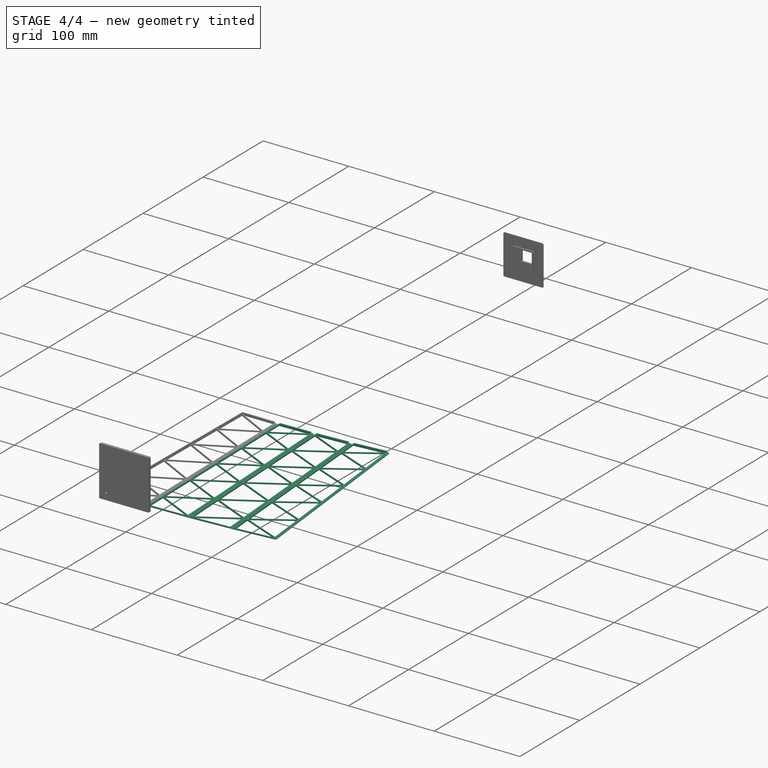
[diagram: stage 4 of 4 — iso view after this stage's code; geometry added in this stage tinted green]
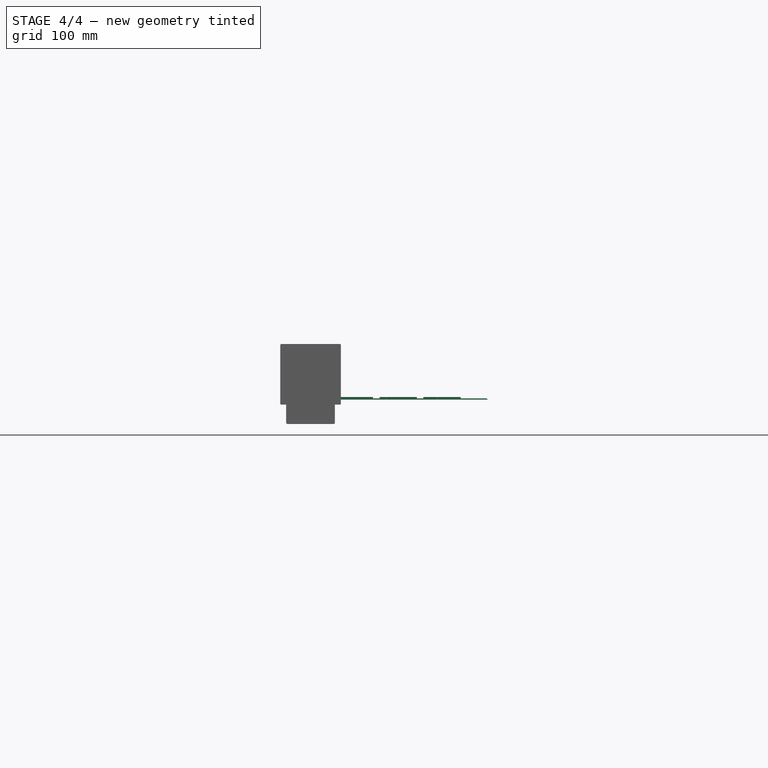
[diagram: stage 4 of 4 — front view after this stage's code; geometry added in this stage tinted green]
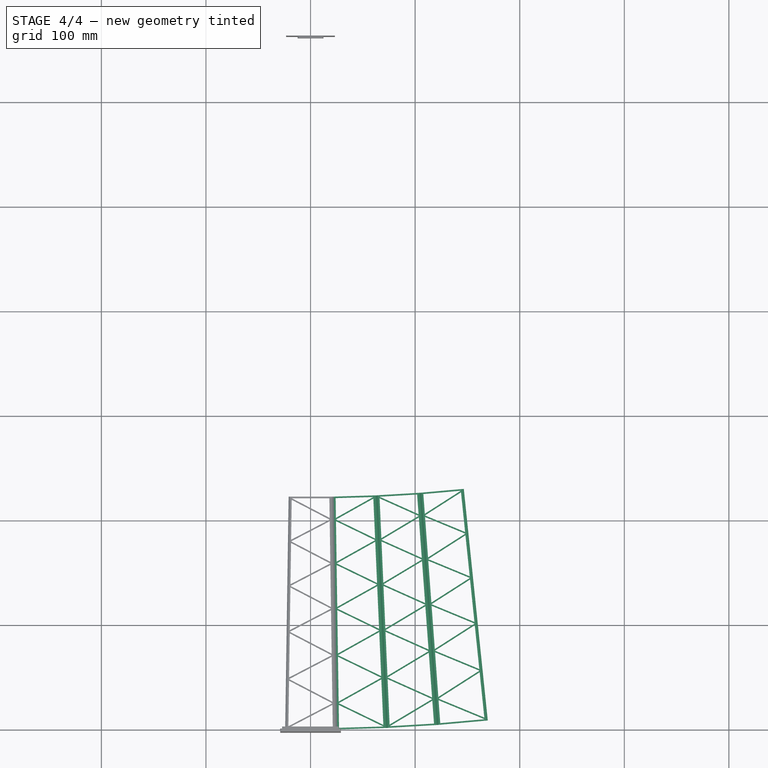
[diagram: stage 4 of 4 — top view after this stage's code; geometry added in this stage tinted green]
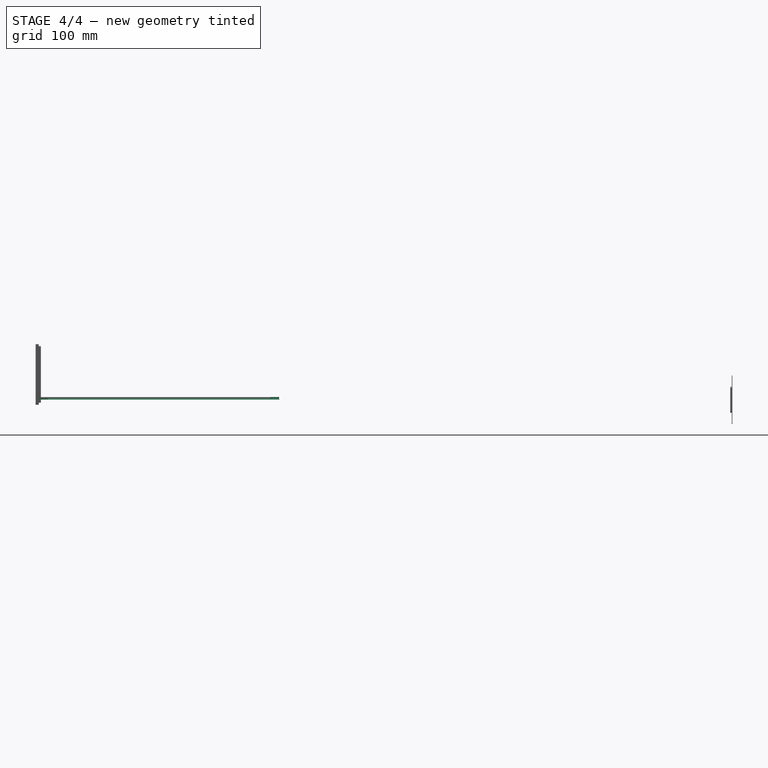
[diagram: stage 4 of 4 — right view after this stage's code; geometry added in this stage tinted green]
FEATURE [PartDesign::Mirrored] Mirrored
  BaseFeature = -> Pad001
  MirrorPlane = -> Pad001 [Face4]
  Refine = true
  Suppressed = false
  TransformMode = 1
FEATURE [PartDesign::Mirrored] Mirrored001
  BaseFeature = -> Mirrored
  MirrorPlane = -> Mirrored [Face47]
  Refine = true
  Suppressed = false
  TransformMode = 1
FEATURE [Sketcher::SketchObject] Sketch004
  ArcFitTolerance = 1e-06
  AttachmentSupport = -> [Mirrored001]
  ExternalGeometry = -> [Mirrored001]
  FullyConstrained = true
  MakeInternals = false
  MapMode = 5
  Placement = pos=(0,0,0) rot=(1,0,0;1.5708rad)
  sketch-geometry (4):
    g0: LineSegment StartX=-23.0584 StartY=2.4 StartZ=0 EndX=-23.0584 EndY=1.2 EndZ=0
    g1: LineSegment StartX=-23.0584 StartY=1.2 StartZ=0 EndX=-21.8584 EndY=1.2 EndZ=0
    g2: LineSegment StartX=-21.8584 StartY=1.2 StartZ=0 EndX=-21.8584 EndY=2.4 EndZ=0
    g3: LineSegment StartX=-21.8584 StartY=2.4 StartZ=0 EndX=-23.0584 EndY=2.4 EndZ=0
  constraints (11):
    c: Coincident(g0,g1)
    c: Coincident(g1,g2)
    c: Coincident(g2,g3)
    c: Coincident(g3,g0)
    c: Vertical(g0)
    c: Vertical(g2)
    c: Horizontal(g1)
    c: Horizontal(g3)
    c: Equal(g0,g1)
    c: Coincident(g0,g-3)
    c: DistanceY(g0,g0) = 1.2
FEATURE [PartDesign::AdditivePipe] AdditivePipe
  AuxilleryCurvelinear = true
  AuxillerySpineTangent = false
  BaseFeature = -> Mirrored001
  Binormal = (0,0,0)
  Mode = 0
  Profile = -> Sketch004
  Refine = true
  Spine = -> Mirrored001 [Edge23]
  SpineTangent = false
  Suppressed = false
  Transformation = 0
  Transition = 0
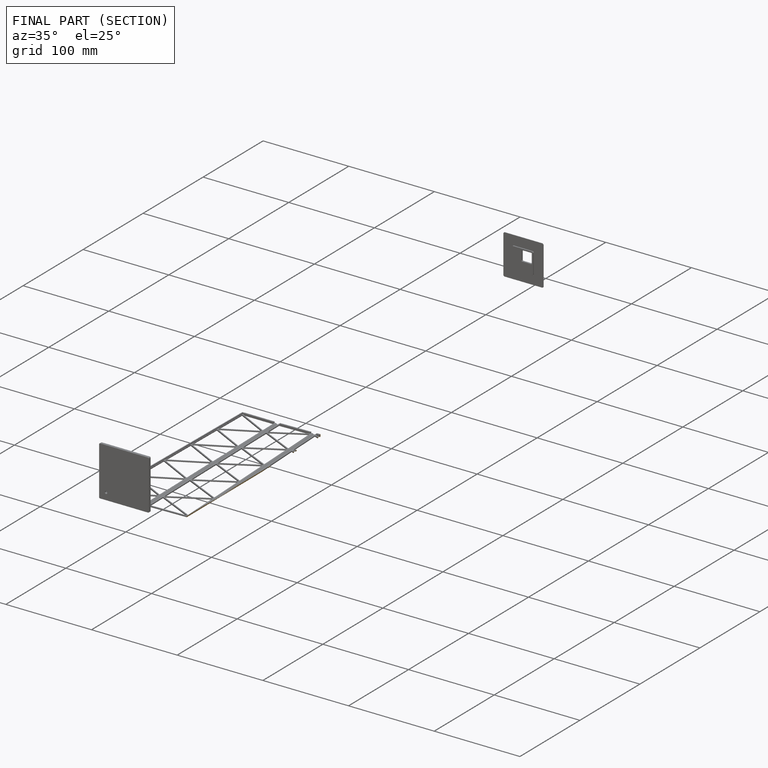
[diagram: finished part — half-section view (interior)]
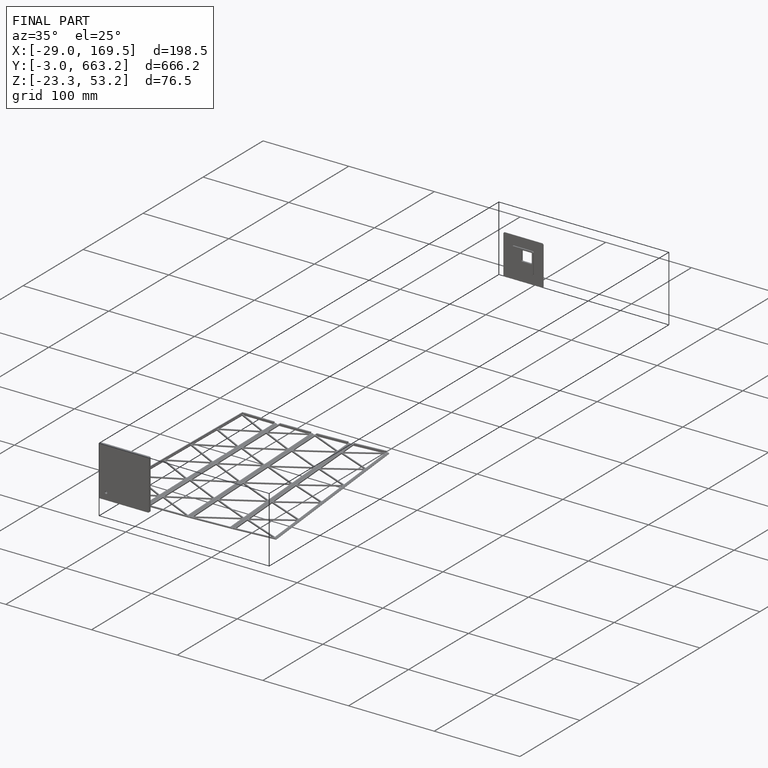
[diagram: finished part — iso view with bounding-box wireframe]
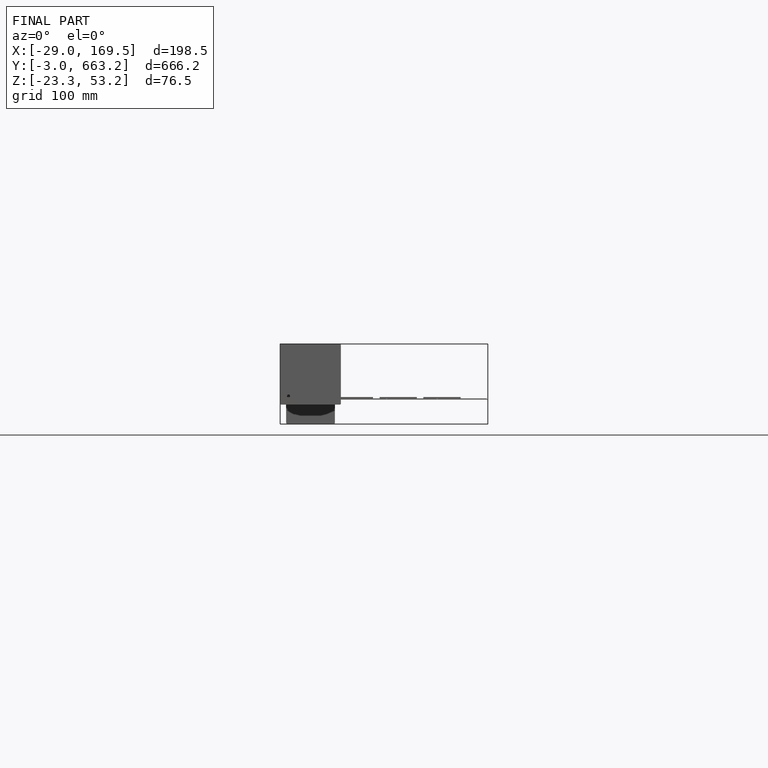
[diagram: finished part — front view with bounding-box wireframe]
